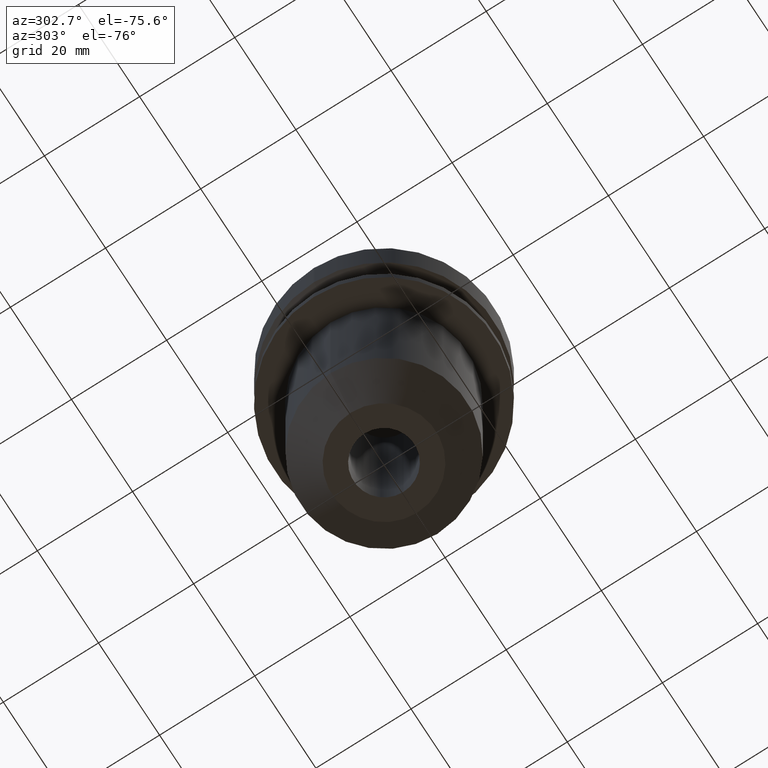
[diagram: clean part render]
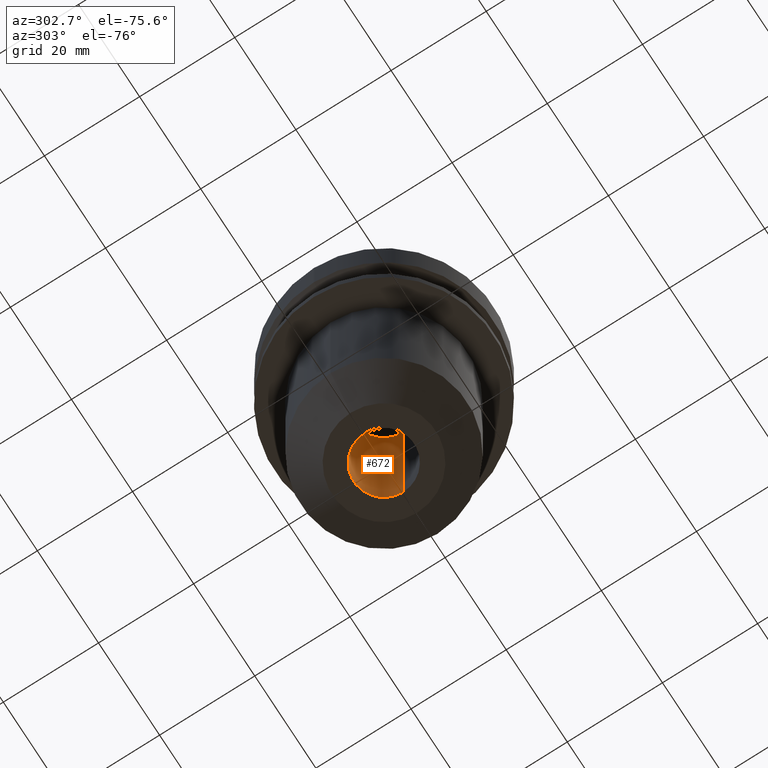
[diagram: same view with one face highlighted and labeled with its STEP entity id]
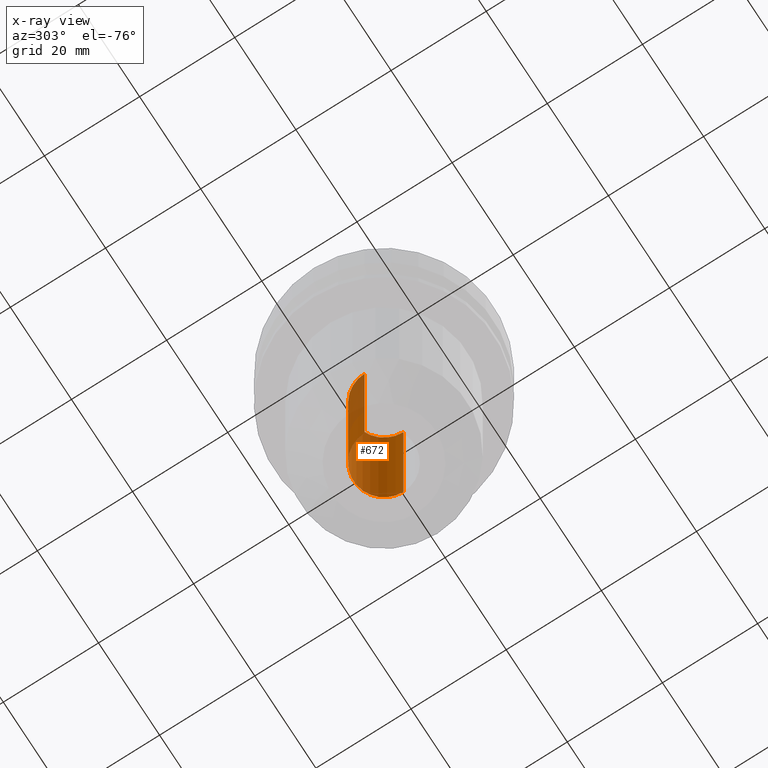
[diagram: x-ray of the same camera — body ghosted, the highlighted face saturated]
A machine part, auxiliary view. The second image highlights one B-rep face of the part: STEP entity #672.
The next image is the same camera in x-ray: the body ghosted, the highlighted face saturated — about 16% of this face is hidden behind the body in this view.
In plain terms, the highlighted cylindrical surface (edge-blend (fillet) strip) has radius 6.35 mm, axis along (-0, -0, 1).
Its self-contained STEP definition (entity closure, byte-faithful):
#10 = AXIS2_PLACEMENT_3D ( 'NONE', #514, #753, #462 ) ;
#18 = ORIENTED_EDGE ( 'NONE', *, *, #435, .T. ) ;
#118 = CARTESIAN_POINT ( 'NONE',  ( 6.349999999999996980, 0.000000000000000000, 0.000000000000000000 ) ) ;
#166 = CARTESIAN_POINT ( 'NONE',  ( -6.349999999999996980, 7.776507174585690191E-16, 0.000000000000000000 ) ) ;
#171 = VERTEX_POINT ( 'NONE', #224 ) ;
#219 = ORIENTED_EDGE ( 'NONE', *, *, #708, .F. ) ;
#220 = DIRECTION ( 'NONE',  ( 1.000000000000000000, 0.000000000000000000, 0.000000000000000000 ) ) ;
#224 = CARTESIAN_POINT ( 'NONE',  ( -6.349999999999999645, 7.776507174585693149E-16, -63.50000000000000000 ) ) ;
#229 = CARTESIAN_POINT ( 'NONE',  ( -6.349999999999996980, 7.776507174585690191E-16, -20.99999999999999645 ) ) ;
#235 = ORIENTED_EDGE ( 'NONE', *, *, #345, .T. ) ;
#262 = CIRCLE ( 'NONE', #10, 6.349999999999996980 ) ;
#282 = LINE ( 'NONE', #166, #655 ) ;
#305 = AXIS2_PLACEMENT_3D ( 'NONE', #691, #576, #220 ) ;
#328 = DIRECTION ( 'NONE',  ( 1.000000000000000000, 0.000000000000000000, 0.000000000000000000 ) ) ;
#345 = EDGE_CURVE ( 'NONE', #437, #696, #262, .T. ) ;
#351 = CARTESIAN_POINT ( 'NONE',  ( 6.349999999999996980, 0.000000000000000000, -20.99999999999999645 ) ) ;
#394 = AXIS2_PLACEMENT_3D ( 'NONE', #461, #449, #328 ) ;
#401 = EDGE_LOOP ( 'NONE', ( #219, #423, #18, #235 ) ) ;
#408 = VERTEX_POINT ( 'NONE', #702 ) ;
#423 = ORIENTED_EDGE ( 'NONE', *, *, #689, .F. ) ;
#435 = EDGE_CURVE ( 'NONE', #408, #437, #601, .T. ) ;
#437 = VERTEX_POINT ( 'NONE', #351 ) ;
#449 = DIRECTION ( 'NONE',  ( -0.000000000000000000, -0.000000000000000000, 1.000000000000000000 ) ) ;
#452 = FACE_OUTER_BOUND ( 'NONE', #401, .T. ) ;
#461 = CARTESIAN_POINT ( 'NONE',  ( 0.000000000000000000, 0.000000000000000000, -63.50000000000000000 ) ) ;
#462 = DIRECTION ( 'NONE',  ( 1.000000000000000000, 0.000000000000000000, 0.000000000000000000 ) ) ;
#505 = CYLINDRICAL_SURFACE ( 'NONE', #305, 6.349999999999996980 ) ;
#514 = CARTESIAN_POINT ( 'NONE',  ( 0.000000000000000000, 0.000000000000000000, -20.99999999999999645 ) ) ;
#576 = DIRECTION ( 'NONE',  ( -0.000000000000000000, -0.000000000000000000, 1.000000000000000000 ) ) ;
#601 = LINE ( 'NONE', #118, #731 ) ;
#648 = DIRECTION ( 'NONE',  ( -0.000000000000000000, -0.000000000000000000, 1.000000000000000000 ) ) ;
#655 = VECTOR ( 'NONE', #755, 1000.000000000000000 ) ;
#672 = ADVANCED_FACE ( 'NONE', ( #452 ), #505, .F. ) ;
#689 = EDGE_CURVE ( 'NONE', #408, #171, #746, .T. ) ;
#691 = CARTESIAN_POINT ( 'NONE',  ( 0.000000000000000000, 0.000000000000000000, 0.000000000000000000 ) ) ;
#696 = VERTEX_POINT ( 'NONE', #229 ) ;
#702 = CARTESIAN_POINT ( 'NONE',  ( 6.349999999999999645, 0.000000000000000000, -63.50000000000000000 ) ) ;
#708 = EDGE_CURVE ( 'NONE', #171, #696, #282, .T. ) ;
#731 = VECTOR ( 'NONE', #648, 1000.000000000000000 ) ;
#746 = CIRCLE ( 'NONE', #394, 6.349999999999999645 ) ;
#753 = DIRECTION ( 'NONE',  ( -0.000000000000000000, -0.000000000000000000, 1.000000000000000000 ) ) ;
#755 = DIRECTION ( 'NONE',  ( -0.000000000000000000, -0.000000000000000000, 1.000000000000000000 ) ) ;